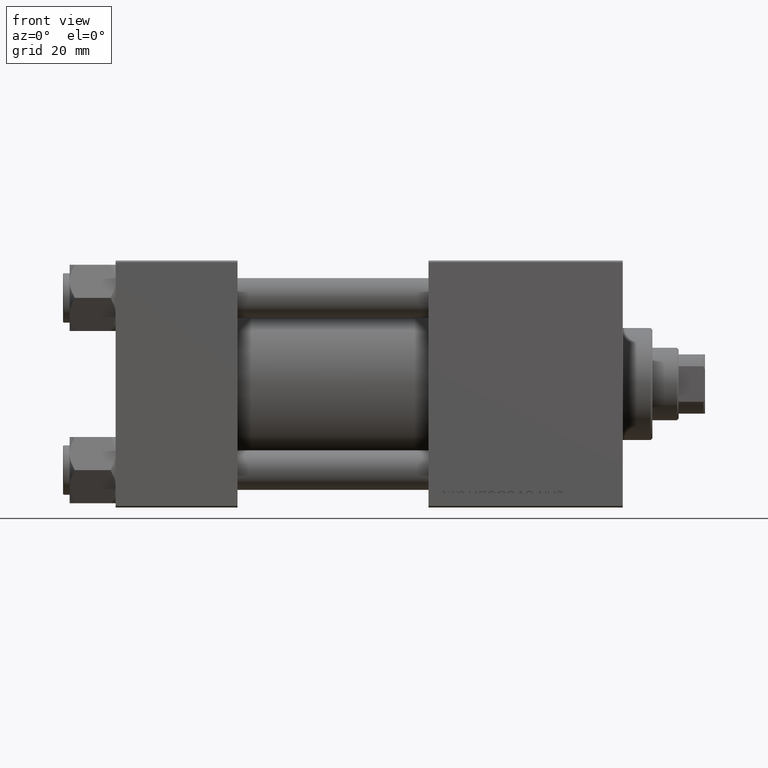
[diagram: clean part render]
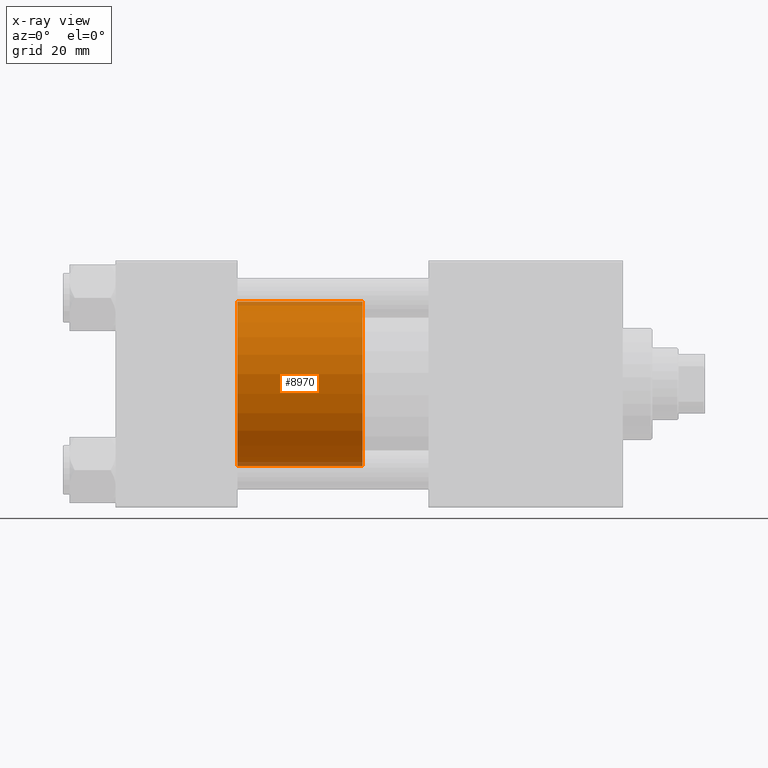
[diagram: x-ray — body ghosted, one internal face saturated and labeled with its STEP entity id]
A machine part, front view, then the same camera in x-ray: the body is ghosted and one INTERNAL B-rep face — a face not visible from any outside direction — is saturated and labeled: STEP entity #8970.
In plain terms, the highlighted cylindrical surface (partial cylindrical patch) has radius 25 mm, axis along (-1, 0, 0).
Its self-contained STEP definition (entity closure, byte-faithful):
#29 = DIRECTION ( 'NONE',  ( -0.000000000000000000, -0.000000000000000000, -1.000000000000000000 ) ) ;
#200 = LINE ( 'NONE', #31403, #47396 ) ;
#3282 = CARTESIAN_POINT ( 'NONE',  ( -25.00000000000000000, 0.000000000000000000, 0.000000000000000000 ) ) ;
#3804 = DIRECTION ( 'NONE',  ( 0.000000000000000000, 0.000000000000000000, 1.000000000000000000 ) ) ;
#3963 = EDGE_CURVE ( 'NONE', #45503, #15007, #47605, .T. ) ;
#8970 = ADVANCED_FACE ( 'NONE', ( #22099 ), #10680, .T. ) ;
#10680 = CYLINDRICAL_SURFACE ( 'NONE', #14323, 25.00000000000000000 ) ;
#12261 = CARTESIAN_POINT ( 'NONE',  ( 25.00000000000000000, 3.061616997868383043E-15, 38.00000000000000000 ) ) ;
#14088 = CIRCLE ( 'NONE', #32721, 25.00000000000000000 ) ;
#14323 = AXIS2_PLACEMENT_3D ( 'NONE', #14479, #29, #42156 ) ;
#14479 = CARTESIAN_POINT ( 'NONE',  ( 0.000000000000000000, 0.000000000000000000, 38.00000000000000000 ) ) ;
#15007 = VERTEX_POINT ( 'NONE', #21317 ) ;
#15939 = EDGE_CURVE ( 'NONE', #15007, #46709, #14088, .T. ) ;
#15965 = EDGE_CURVE ( 'NONE', #45503, #18833, #38430, .T. ) ;
#17755 = ORIENTED_EDGE ( 'NONE', *, *, #21437, .F. ) ;
#18833 = VERTEX_POINT ( 'NONE', #41634 ) ;
#21317 = CARTESIAN_POINT ( 'NONE',  ( 25.00000000000000000, 3.061616997868383043E-15, 0.000000000000000000 ) ) ;
#21437 = EDGE_CURVE ( 'NONE', #18833, #46709, #200, .T. ) ;
#22099 = FACE_OUTER_BOUND ( 'NONE', #36877, .T. ) ;
#26906 = CARTESIAN_POINT ( 'NONE',  ( 0.000000000000000000, 0.000000000000000000, 38.00000000000000000 ) ) ;
#27887 = AXIS2_PLACEMENT_3D ( 'NONE', #26906, #3804, #42894 ) ;
#28577 = DIRECTION ( 'NONE',  ( -0.000000000000000000, -0.000000000000000000, -1.000000000000000000 ) ) ;
#30712 = CARTESIAN_POINT ( 'NONE',  ( 0.000000000000000000, 0.000000000000000000, 0.000000000000000000 ) ) ;
#31403 = CARTESIAN_POINT ( 'NONE',  ( -25.00000000000000000, 0.000000000000000000, 38.00000000000000000 ) ) ;
#32122 = CARTESIAN_POINT ( 'NONE',  ( 25.00000000000000000, 3.061616997868383043E-15, 38.00000000000000000 ) ) ;
#32721 = AXIS2_PLACEMENT_3D ( 'NONE', #30712, #41181, #46454 ) ;
#34379 = ORIENTED_EDGE ( 'NONE', *, *, #3963, .T. ) ;
#34518 = VECTOR ( 'NONE', #28577, 1000.000000000000000 ) ;
#36877 = EDGE_LOOP ( 'NONE', ( #38845, #34379, #49475, #17755 ) ) ;
#38430 = CIRCLE ( 'NONE', #27887, 25.00000000000000000 ) ;
#38845 = ORIENTED_EDGE ( 'NONE', *, *, #15965, .F. ) ;
#39026 = DIRECTION ( 'NONE',  ( -0.000000000000000000, -0.000000000000000000, -1.000000000000000000 ) ) ;
#41181 = DIRECTION ( 'NONE',  ( 0.000000000000000000, 0.000000000000000000, 1.000000000000000000 ) ) ;
#41634 = CARTESIAN_POINT ( 'NONE',  ( -25.00000000000000000, 0.000000000000000000, 38.00000000000000000 ) ) ;
#42156 = DIRECTION ( 'NONE',  ( -1.000000000000000000, 0.000000000000000000, 0.000000000000000000 ) ) ;
#42894 = DIRECTION ( 'NONE',  ( 1.000000000000000000, 0.000000000000000000, 0.000000000000000000 ) ) ;
#45503 = VERTEX_POINT ( 'NONE', #12261 ) ;
#46454 = DIRECTION ( 'NONE',  ( 1.000000000000000000, 0.000000000000000000, 0.000000000000000000 ) ) ;
#46709 = VERTEX_POINT ( 'NONE', #3282 ) ;
#47396 = VECTOR ( 'NONE', #39026, 1000.000000000000000 ) ;
#47605 = LINE ( 'NONE', #32122, #34518 ) ;
#49475 = ORIENTED_EDGE ( 'NONE', *, *, #15939, .T. ) ;